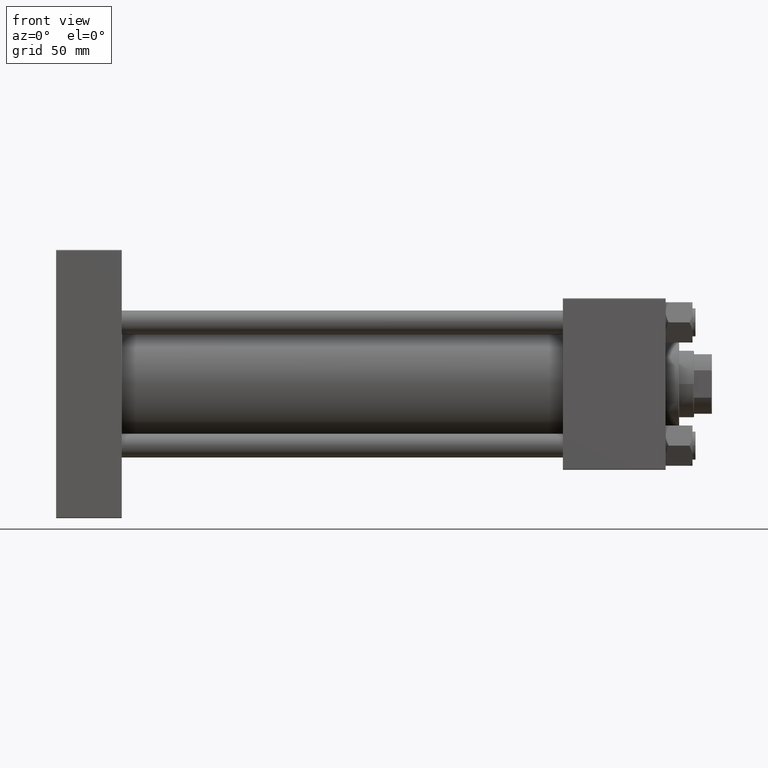
[diagram: clean part render]
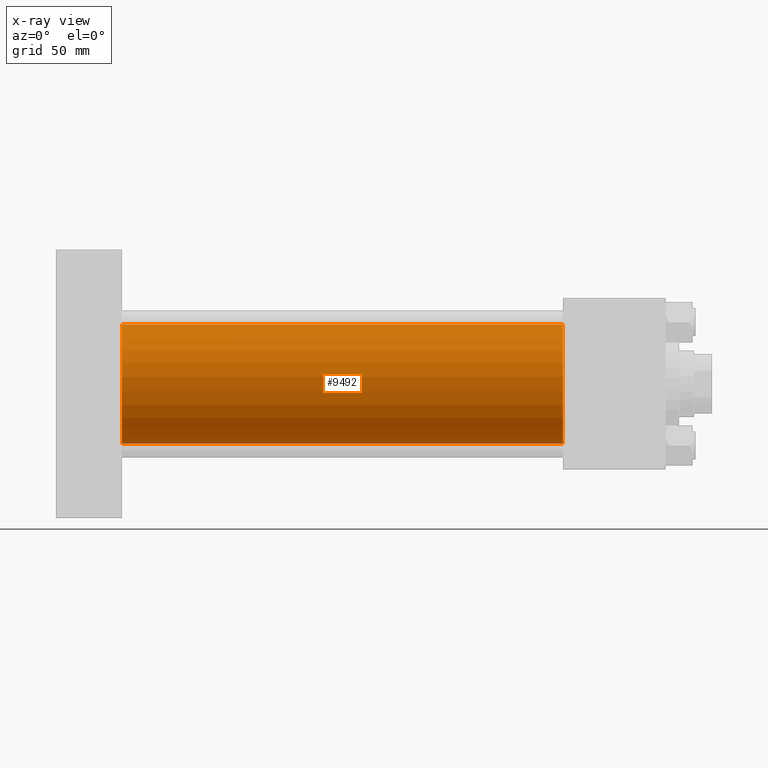
[diagram: x-ray — body ghosted, one internal face saturated and labeled with its STEP entity id]
A machine part, front view, then the same camera in x-ray: the body is ghosted and one INTERNAL B-rep face — a face not visible from any outside direction — is saturated and labeled: STEP entity #9492.
In plain terms, the highlighted cylindrical surface (partial cylindrical patch) has radius 40 mm, axis along (-1, -0, -0).
Its self-contained STEP definition (entity closure, byte-faithful):
#1468 = VECTOR ( 'NONE', #48022, 1000.000000000000000 ) ;
#2917 = CARTESIAN_POINT ( 'NONE',  ( 44.00000000000000000, 2.296501982624201990E-15, -40.00000000000000000 ) ) ;
#6870 = AXIS2_PLACEMENT_3D ( 'NONE', #8252, #48379, #15953 ) ;
#8252 = CARTESIAN_POINT ( 'NONE',  ( 44.00000000000000000, -2.602085213965210642E-15, 0.000000000000000000 ) ) ;
#8779 = DIRECTION ( 'NONE',  ( 0.000000000000000000, 0.000000000000000000, 1.000000000000000000 ) ) ;
#9492 = ADVANCED_FACE ( 'NONE', ( #51828 ), #15427, .F. ) ;
#11306 = DIRECTION ( 'NONE',  ( 1.000000000000000000, 0.000000000000000000, 0.000000000000000000 ) ) ;
#13556 = DIRECTION ( 'NONE',  ( -1.000000000000000000, -0.000000000000000000, -0.000000000000000000 ) ) ;
#13582 = VERTEX_POINT ( 'NONE', #50632 ) ;
#14250 = CARTESIAN_POINT ( 'NONE',  ( 339.9999999999999432, -2.602085213965210642E-15, 0.000000000000000000 ) ) ;
#15427 = CYLINDRICAL_SURFACE ( 'NONE', #25138, 40.00000000000000000 ) ;
#15953 = DIRECTION ( 'NONE',  ( 0.000000000000000000, 0.000000000000000000, -1.000000000000000000 ) ) ;
#16621 = EDGE_CURVE ( 'NONE', #30813, #52209, #46513, .T. ) ;
#16819 = CARTESIAN_POINT ( 'NONE',  ( 339.9999999999999432, -2.602085213965210642E-15, 40.00000000000000000 ) ) ;
#22619 = ORIENTED_EDGE ( 'NONE', *, *, #41615, .F. ) ;
#23322 = EDGE_CURVE ( 'NONE', #13582, #47153, #29778, .T. ) ;
#24113 = CARTESIAN_POINT ( 'NONE',  ( 339.9999999999999432, -2.602085213965210642E-15, 40.00000000000000000 ) ) ;
#25138 = AXIS2_PLACEMENT_3D ( 'NONE', #31625, #13556, #8779 ) ;
#26016 = CARTESIAN_POINT ( 'NONE',  ( 339.9999999999999432, 2.296501982624201990E-15, -40.00000000000000000 ) ) ;
#28293 = LINE ( 'NONE', #32278, #28617 ) ;
#28617 = VECTOR ( 'NONE', #39189, 1000.000000000000000 ) ;
#29778 = CIRCLE ( 'NONE', #6870, 40.00000000000000000 ) ;
#30813 = VERTEX_POINT ( 'NONE', #16819 ) ;
#31625 = CARTESIAN_POINT ( 'NONE',  ( 339.9999999999999432, -2.602085213965210642E-15, 0.000000000000000000 ) ) ;
#31974 = ORIENTED_EDGE ( 'NONE', *, *, #16621, .T. ) ;
#32278 = CARTESIAN_POINT ( 'NONE',  ( 339.9999999999999432, 2.296501982624201990E-15, -40.00000000000000000 ) ) ;
#35476 = DIRECTION ( 'NONE',  ( 0.000000000000000000, 0.000000000000000000, -1.000000000000000000 ) ) ;
#35701 = EDGE_LOOP ( 'NONE', ( #31974, #49340, #40837, #22619 ) ) ;
#39189 = DIRECTION ( 'NONE',  ( -1.000000000000000000, -0.000000000000000000, -0.000000000000000000 ) ) ;
#40837 = ORIENTED_EDGE ( 'NONE', *, *, #23322, .F. ) ;
#41615 = EDGE_CURVE ( 'NONE', #30813, #13582, #44043, .T. ) ;
#41872 = EDGE_CURVE ( 'NONE', #52209, #47153, #28293, .T. ) ;
#44043 = LINE ( 'NONE', #24113, #1468 ) ;
#45661 = AXIS2_PLACEMENT_3D ( 'NONE', #14250, #11306, #35476 ) ;
#46513 = CIRCLE ( 'NONE', #45661, 40.00000000000000000 ) ;
#47153 = VERTEX_POINT ( 'NONE', #2917 ) ;
#48022 = DIRECTION ( 'NONE',  ( -1.000000000000000000, -0.000000000000000000, -0.000000000000000000 ) ) ;
#48379 = DIRECTION ( 'NONE',  ( 1.000000000000000000, 0.000000000000000000, 0.000000000000000000 ) ) ;
#49340 = ORIENTED_EDGE ( 'NONE', *, *, #41872, .T. ) ;
#50632 = CARTESIAN_POINT ( 'NONE',  ( 44.00000000000000000, -2.602085213965210642E-15, 40.00000000000000000 ) ) ;
#51828 = FACE_OUTER_BOUND ( 'NONE', #35701, .T. ) ;
#52209 = VERTEX_POINT ( 'NONE', #26016 ) ;